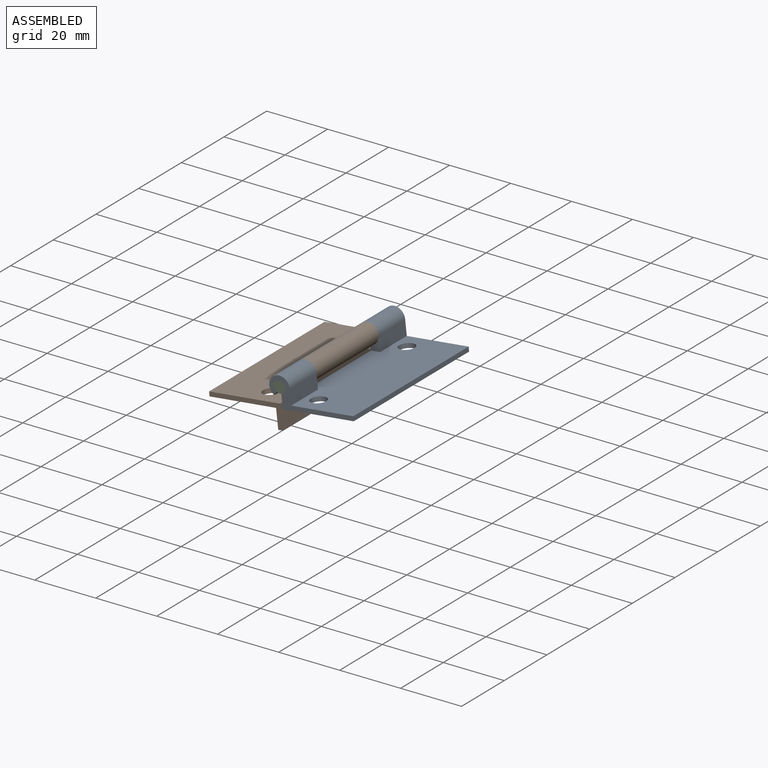
[diagram: assembled view]
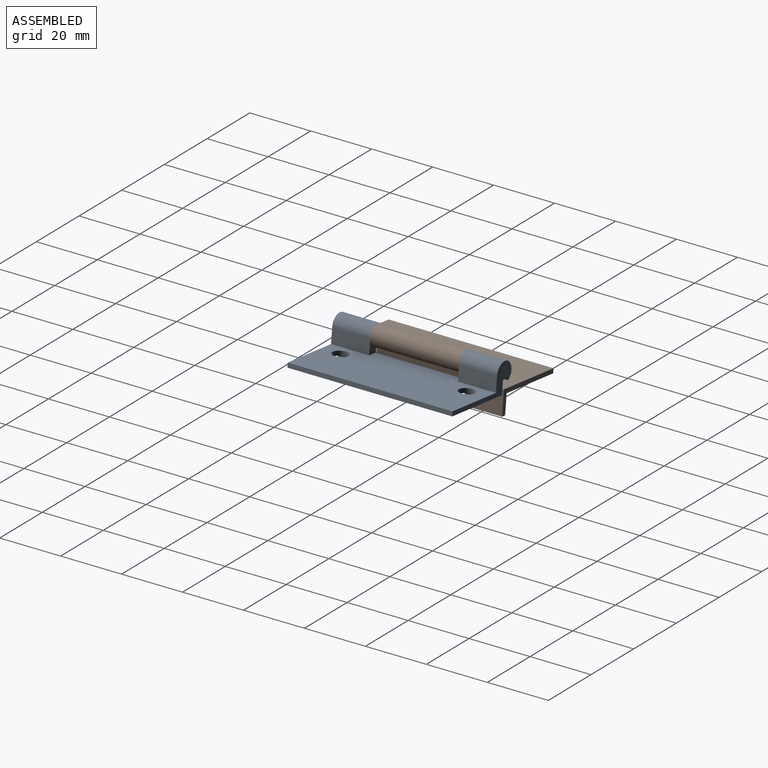
[diagram: assembled view, second angle]
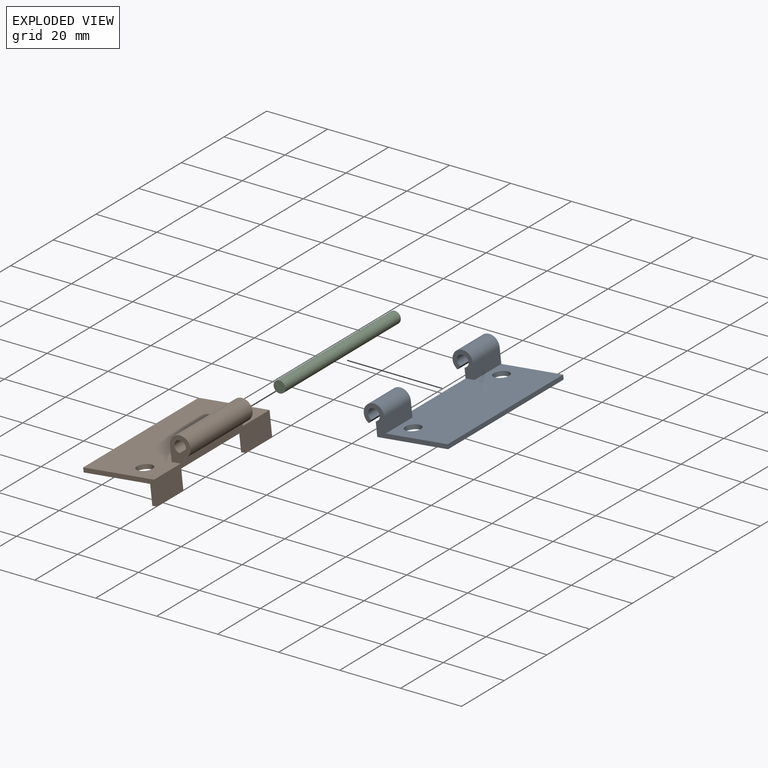
[diagram: exploded view]
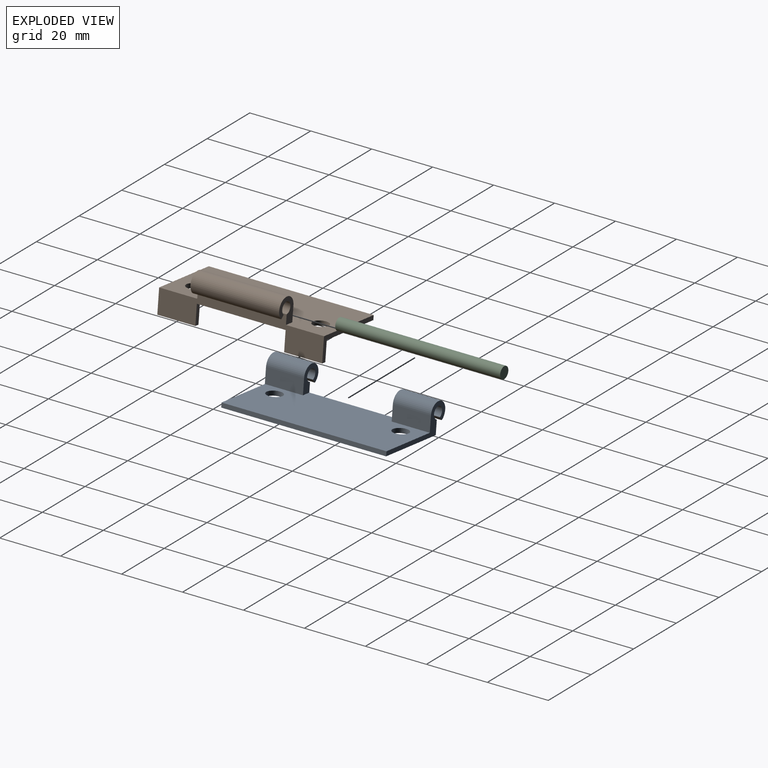
[diagram: exploded view, second angle]
ASSEMBLY  parts=3 mates=3
PART A: 18 faces, bbox 27.2x54.1x9.7 mm
  f0: plane 12.5x4.9mm, normal (1,0,0), area 61.3mm2, adj f1,f11,f12,f16
  f1: cylinder r=3.37mm len=12.5mm, axis (0,1,0), area 171mm2, adj f0,f2,f12,f16
  f2: plane 12.5x1.08mm, normal (0.74,0,-0.67), area 18.2mm2, adj f1,f3,f12,f16
  f3: cylinder r=1.92mm len=12.5mm, axis (0,1,0), area 131.9mm2, adj f2,f4,f12,f16
  f4: plane 54.1x4.47mm, normal (-1,0,0), area 153.9mm2, adj f3,f8,f9,f11,f12,f13,f16,f17
  f5: plane 12.5x4.9mm, normal (1,0,0), area 61.3mm2, adj f6,f11,f13,f17
  f6: cylinder r=3.37mm len=12.5mm, axis (0,1,0), area 171mm2, adj f5,f7,f13,f17
  f7: plane 12.5x1.08mm, normal (0.74,0,-0.67), area 18.2mm2, adj f6,f8,f13,f17
  f8: cylinder r=1.92mm len=12.5mm, axis (0,1,0), area 131.9mm2, adj f4,f7,f13,f17
  f9: plane 54.1x23.41mm, normal (0,0,-1), area 1225.8mm2, adj f4,f10,f12,f13,f14,f15
  f10: plane 54.1x1.45mm, normal (1,0,0), area 78.3mm2, adj f9,f11,f12,f13
  f11: plane 54.1x23.41mm, normal (0,0,1), area 1151.2mm2, adj f0,f4,f5,f10,f12,f13,f14,f15
  f12: plane 27.15x9.72mm, normal (0,-1,0), area 62mm2, adj f0,f1,f2,f3,f4,f9,f10,f11
  f13: plane 27.15x9.72mm, normal (0,1,0), area 62mm2, adj f4,f5,f6,f7,f8,f9,f10,f11
  f14: cylinder r=2.54mm len=5.08mm, axis (0,0,1), area 23.1mm2, adj f9,f11
  f15: cylinder r=2.54mm len=5.08mm, axis (0,0,1), area 23.1mm2, adj f9,f11
  f16: plane 8.27x6.73mm, normal (0,1,0), area 28.1mm2, adj f0,f1,f2,f3,f4,f11
  f17: plane 8.27x6.73mm, normal (0,-1,0), area 28.1mm2, adj f4,f5,f6,f7,f8,f11
PART B: 20 faces, bbox 27.2x54.1x16.1 mm
  f0: plane 54.1x23.41mm, normal (0,0,-1), area 1189.6mm2, adj f5,f6,f8,f9,f10,f11,f14,f16
  f1: plane 29.11x4.9mm, normal (1,0,0), area 142.7mm2, adj f2,f7,f12,f13
  f2: cylinder r=3.37mm len=29.11mm, axis (0,1,0), area 398.3mm2, adj f1,f3,f12,f13
  f3: plane 29.11x1.08mm, normal (0.74,0,-0.67), area 42.5mm2, adj f2,f4,f12,f13
  f4: cylinder r=1.92mm len=29.11mm, axis (0,1,0), area 307.3mm2, adj f3,f5,f12,f13
  f5: plane 54.1x10.82mm, normal (-1,0,0), area 325mm2, adj f0,f4,f7,f8,f9,f12,f13,f14
  f6: plane 54.1x1.45mm, normal (1,0,0), area 78.3mm2, adj f0,f7,f8,f9
  f7: plane 54.1x23.41mm, normal (0,0,1), area 1138.9mm2, adj f1,f5,f6,f8,f9,f10,f11,f12
  f8: plane 23.41x7.8mm, normal (0,-1,0), area 43.1mm2, adj f0,f5,f6,f7,f18,f19
  f9: plane 23.41x7.8mm, normal (0,1,0), area 43.1mm2, adj f0,f5,f6,f7,f15,f16
  f10: cylinder r=2.54mm len=5.08mm, axis (0,0,1), area 23.1mm2, adj f0,f7
  f11: cylinder r=2.54mm len=5.08mm, axis (0,0,1), area 23.1mm2, adj f0,f7
  f12: plane 8.27x6.73mm, normal (0,1,0), area 28.1mm2, adj f1,f2,f3,f4,f5,f7
  f13: plane 8.27x6.73mm, normal (0,-1,0), area 28.1mm2, adj f1,f2,f3,f4,f5,f7
  f14: plane 6.35x1.45mm, normal (0,-1,0), area 9.2mm2, adj f0,f5,f15,f16
  f15: plane 12.5x1.45mm, normal (0,0,-1), area 18.1mm2, adj f5,f9,f14,f16
  f16: plane 12.5x6.35mm, normal (1,0,0), area 79.4mm2, adj f0,f9,f14,f15
  f17: plane 6.35x1.45mm, normal (0,1,0), area 9.2mm2, adj f0,f5,f18,f19
  f18: plane 12.5x1.45mm, normal (0,0,-1), area 18.1mm2, adj f5,f8,f17,f19
  f19: plane 12.5x6.35mm, normal (1,0,0), area 79.4mm2, adj f0,f8,f17,f18
PART C: 3 faces, bbox 3.9x54.1x3.9 mm
  f0: cylinder r=1.93mm len=54.1mm, axis (0,1,0), area 656.2mm2, adj f1,f2
  f1: plane 3.86x3.86mm, normal (0,-1,0), area 11.7mm2, adj f0
  f2: plane 3.86x3.86mm, normal (0,1,0), area 11.7mm2, adj f0
PLACE A rot(axis=(0,-1,0),6.4deg) t=(4.92,7.93,4.1)mm
PLACE B rot(axis=(0.06,0,-1),180deg) t=(-42.37,-46.18,-1.17)mm
PLACE C rot(axis=(0,-1,0),6.4deg) t=(-19.43,7.93,7.77)mm
MATE revolute B.f2 <-> A.f1  axis (0,1,0) through (-19.43,-4.57,7.77)mm
MATE revolute C.f0 <-> A.f1  axis (0,-1,0) through (-19.43,-46.18,7.77)mm
MATE planar C.f0 <-> A.f1  axis (0,-1,0) through (-19.43,-46.18,7.77)mm
